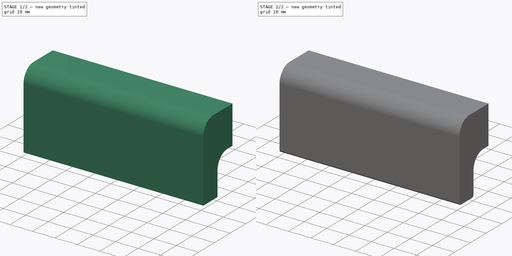
[diagram: build sequence overview — one tinted view per stage of 2, left to right]
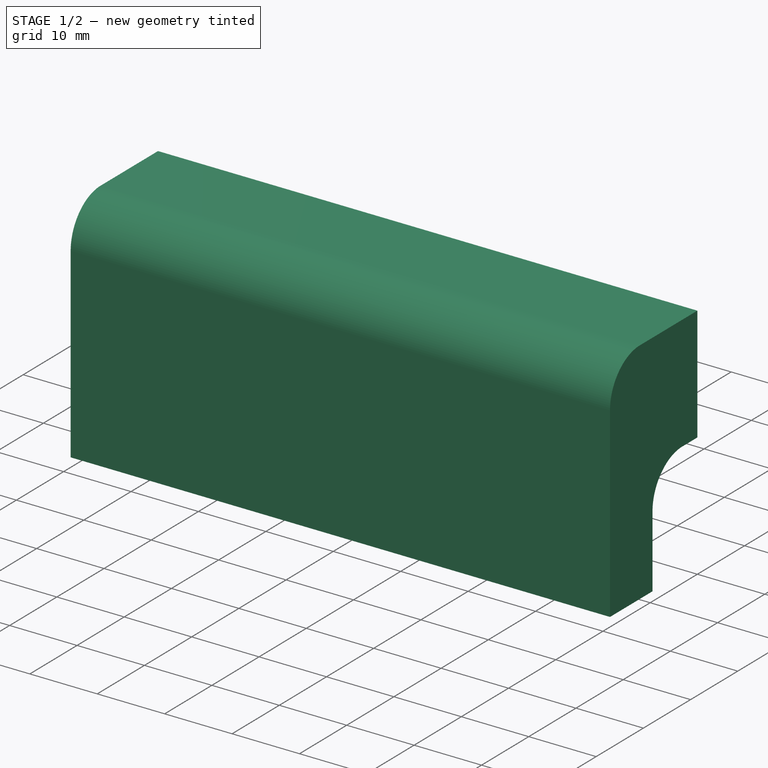
[diagram: stage 1 of 2 — iso view after this stage's code; geometry added in this stage tinted green]
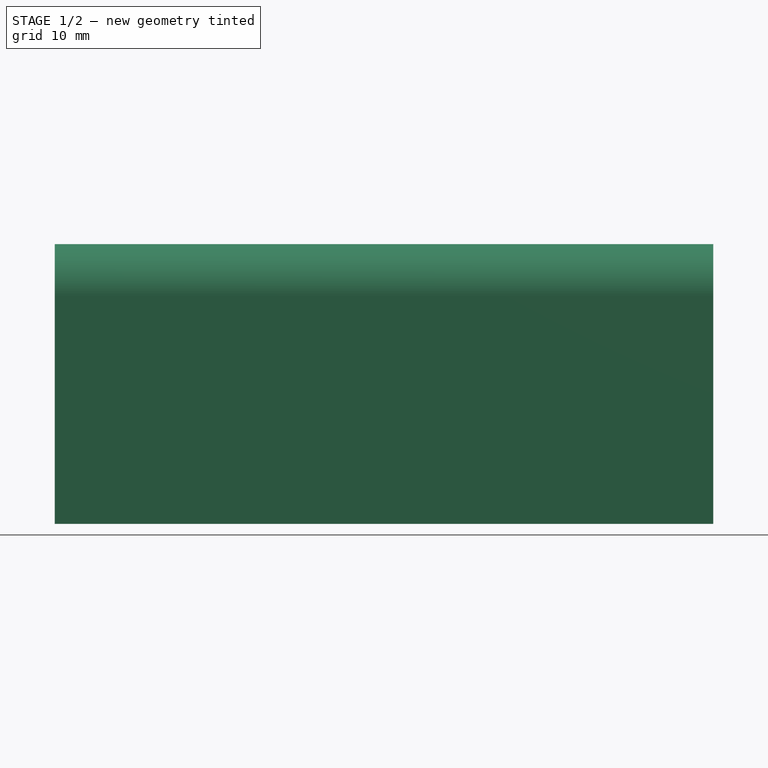
[diagram: stage 1 of 2 — front view after this stage's code; geometry added in this stage tinted green]
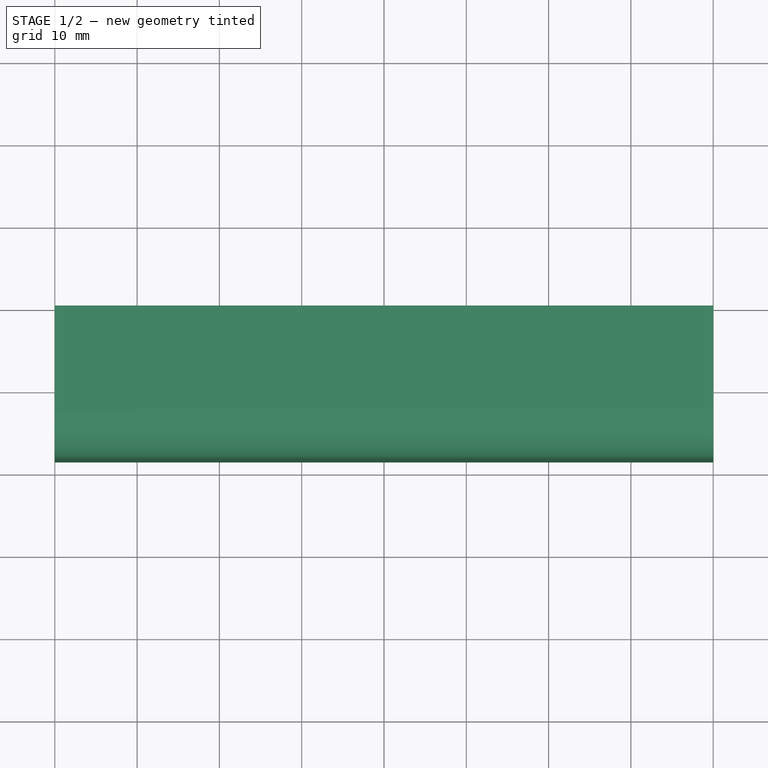
[diagram: stage 1 of 2 — top view after this stage's code; geometry added in this stage tinted green]
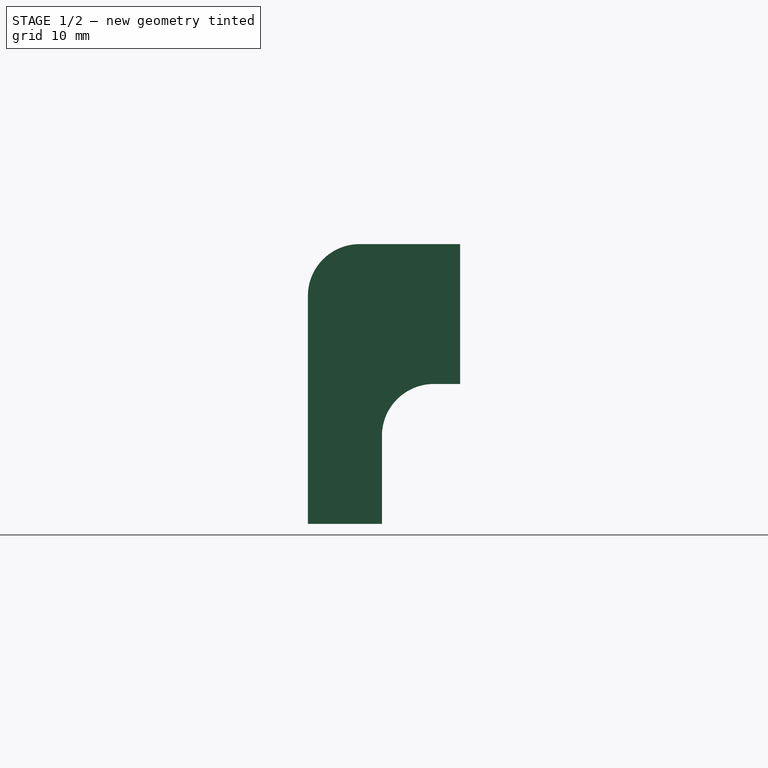
[diagram: stage 1 of 2 — right view after this stage's code; geometry added in this stage tinted green]
FCSTD DOCUMENT  (FreeCAD 0.18R4 (GitTag))
Label: drawer_pull
License: All rights reserved
LicenseURL: http://en.wikipedia.org/wiki/All_rights_reserved
objects: Sketcher::SketchObject×1, PartDesign::Pad×1, PartDesign::Fillet×1, PartDesign::Body×1
note: 5 computed .brp shape members not serialized (recipe doc carries the construction recipe); baked Part::Feature solids carry a one-line shape summary decoded from their .brp

FEATURE [Sketcher::SketchObject] Sketch
  MapMode = 5
  Placement = pos=(0,0,0) rot=(0.57735,0.57735,0.57735;2.0944rad)
  Support = -> [YZ_Plane]
  sketch-geometry (8):
    g0: LineSegment StartX=-9.5 StartY=0 StartZ=0 EndX=-18.5 EndY=0 EndZ=0
    g1: LineSegment StartX=-18.5 StartY=0 StartZ=0 EndX=-18.5 EndY=27.7 EndZ=0
    g2: LineSegment StartX=-12.2 StartY=34 StartZ=0 EndX=0 EndY=34 EndZ=0
    g3: LineSegment StartX=0 StartY=34 StartZ=0 EndX=0 EndY=17 EndZ=0
    g4: LineSegment StartX=-9.5 StartY=0 StartZ=0 EndX=-9.5 EndY=10.7 EndZ=0
    g5: LineSegment StartX=-3.2 StartY=17 StartZ=0 EndX=0 EndY=17 EndZ=0
    g6: ArcOfCircle CenterX=-3.2 CenterY=10.7 CenterZ=0 NormalX=0 NormalY=0 NormalZ=1 AngleXU=0 Radius=6.3 StartAngle=1.5708 EndAngle=3.14159
    g7: ArcOfCircle CenterX=-12.2 CenterY=27.7 CenterZ=0 NormalX=0 NormalY=0 NormalZ=1 AngleXU=0 Radius=6.3 StartAngle=1.5708 EndAngle=3.14159
  constraints (26):
    c: Coincident(g5,g3)
    c: Coincident(g3,g2)
    c: Coincident(g7,g2)
    c: Coincident(g7,g1)
    c: Coincident(g1,g0)
    c: Coincident(g0,g4)
    c: Coincident(g4,g6)
    c: Coincident(g6,g5)
    c: Horizontal(g0)
    c: Horizontal(g5)
    c: Horizontal(g2)
    c: Vertical(g3)
    c: Vertical(g1)
    c: Vertical(g4)
    c: PointOnObject(g3,g-2)
    c: PointOnObject(g0,g-1)
    c: DistanceX(g0,g3) = 18.5
    c: DistanceY(g0,g2) = 34
    c: Radius(g7) = 6.3
    c: DistanceY(g1,g2) = 6.3
    c: DistanceX(g1,g2) = 6.3
    c: DistanceY(g-1,g3) = 17
    c: DistanceX(g0,g0) = 9
    c: Radius(g6) = 6.3
    c: DistanceY(g4,g5) = 6.3
    c: DistanceX(g4,g5) = 6.3
FEATURE [PartDesign::Pad] Pad
  Length = 80
  Length2 = 100
  Placement = pos=(0,0,0) rot=(0.57735,0.57735,0.57735;2.0944rad)
  Profile = -> Sketch
  Type = 0
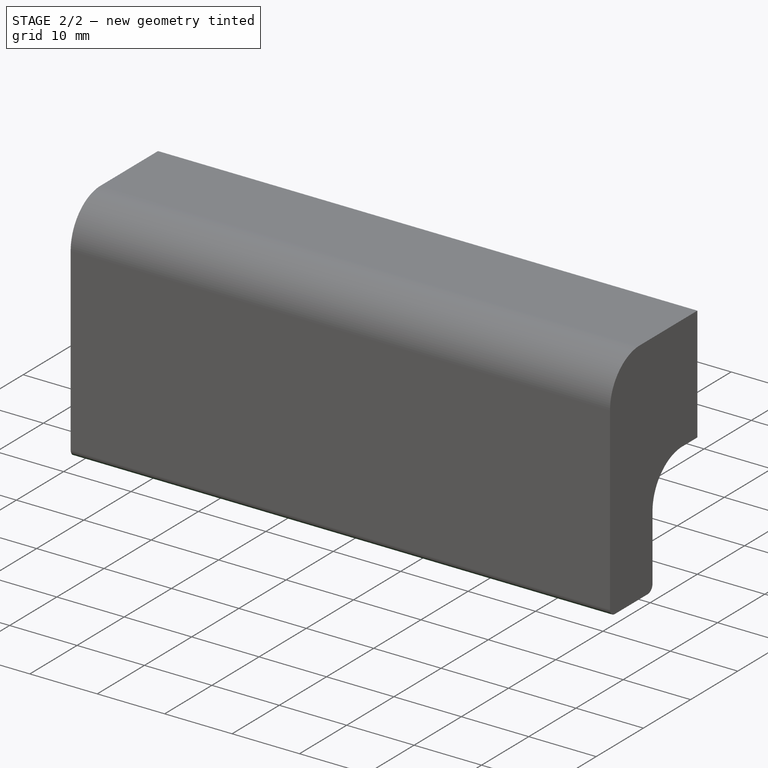
[diagram: stage 2 of 2 — iso view after this stage's code; geometry added in this stage tinted green]
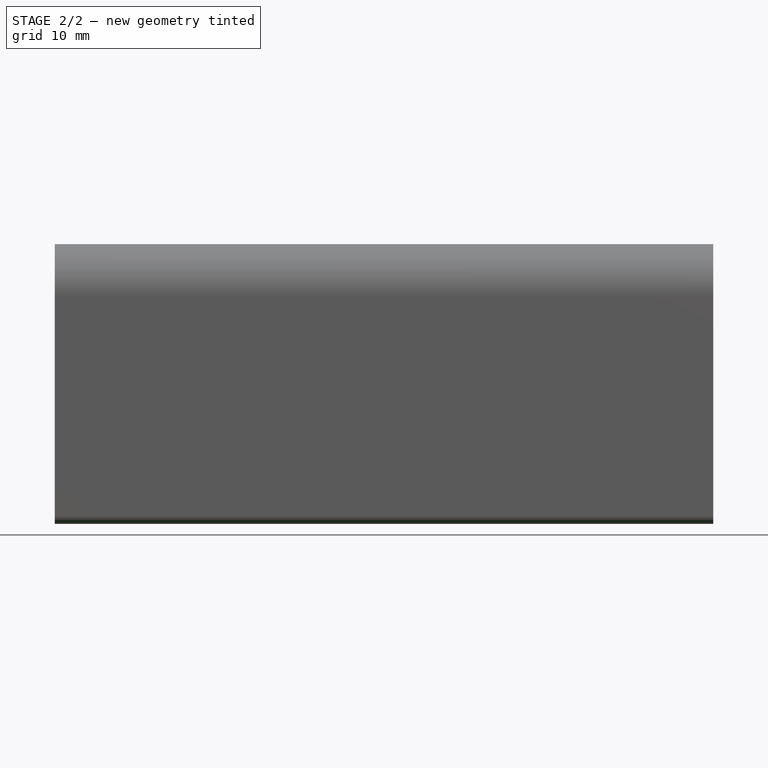
[diagram: stage 2 of 2 — front view after this stage's code; geometry added in this stage tinted green]
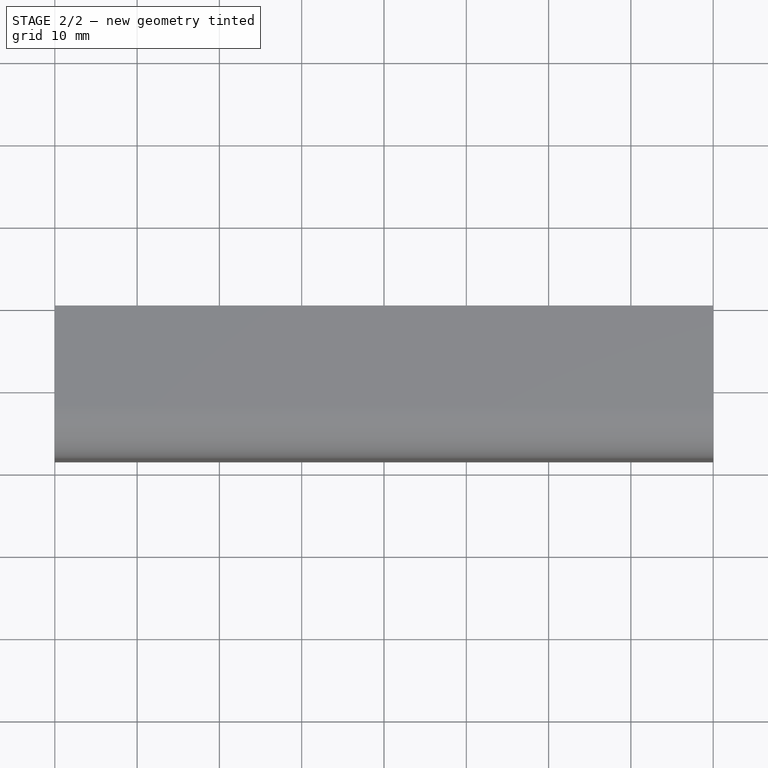
[diagram: stage 2 of 2 — top view after this stage's code; geometry added in this stage tinted green]
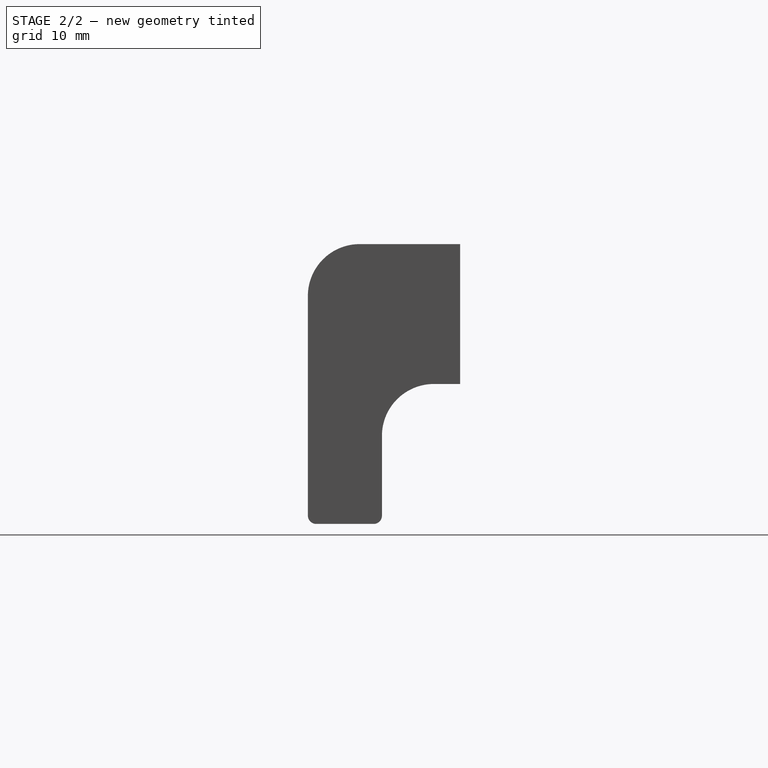
[diagram: stage 2 of 2 — right view after this stage's code; geometry added in this stage tinted green]
FEATURE [PartDesign::Fillet] Fillet
  Base = -> Pad [Edge8,Edge5]
  BaseFeature = -> Pad
  Placement = pos=(0,0,0) rot=(0.57735,0.57735,0.57735;2.0944rad)
  Radius = 1
FEATURE [PartDesign::Body] Body
  Group = -> [Sketch,Pad,Fillet]
  Origin = -> Origin
  Tip = -> Fillet
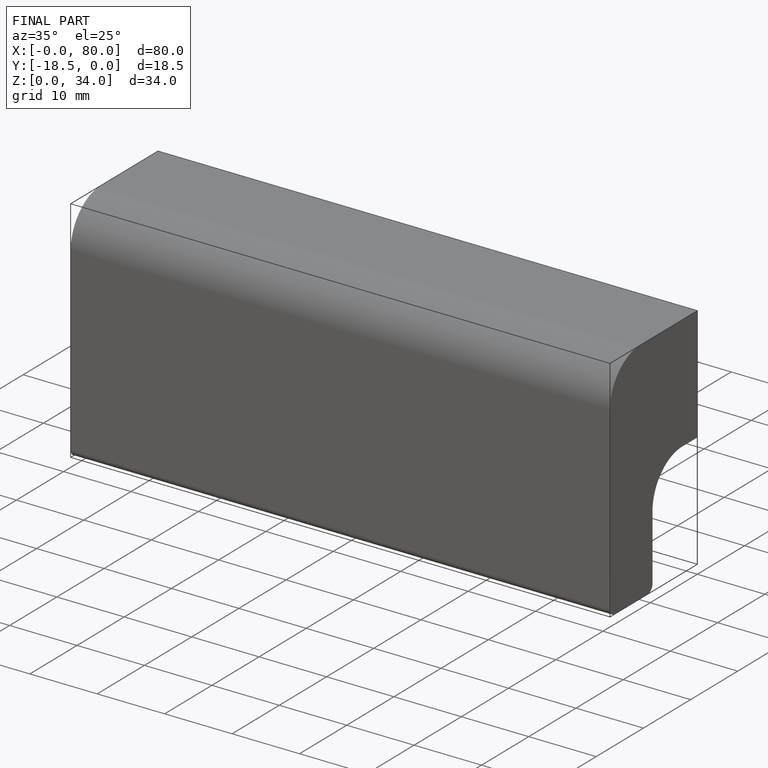
[diagram: finished part — iso view with bounding-box wireframe]
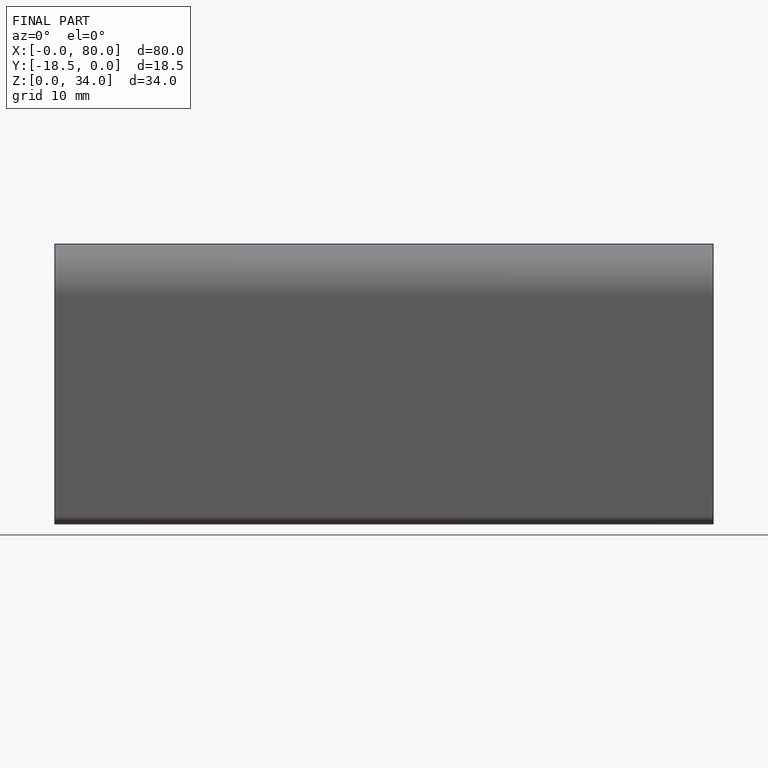
[diagram: finished part — front view with bounding-box wireframe]
